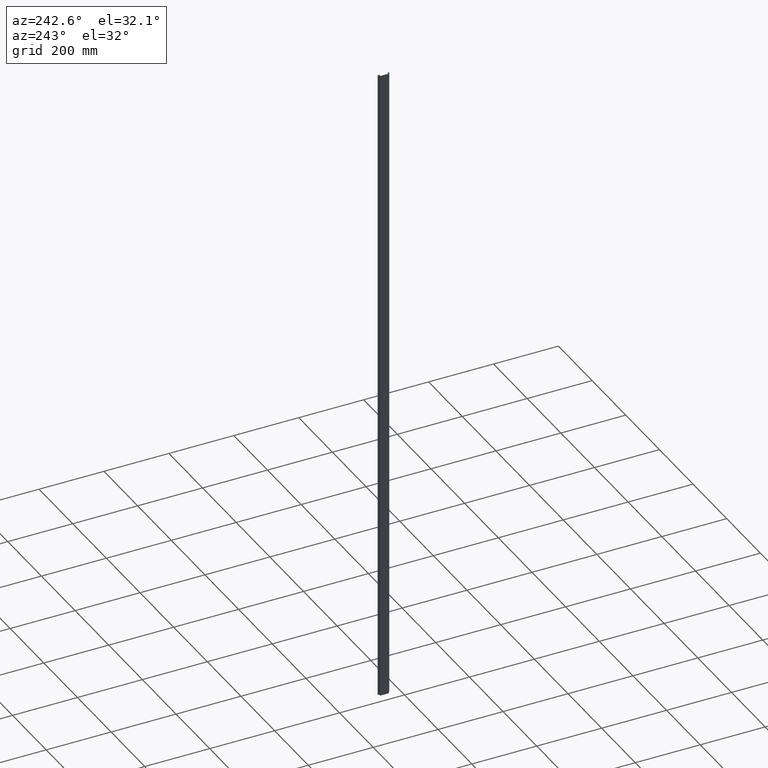
[diagram: clean part render]
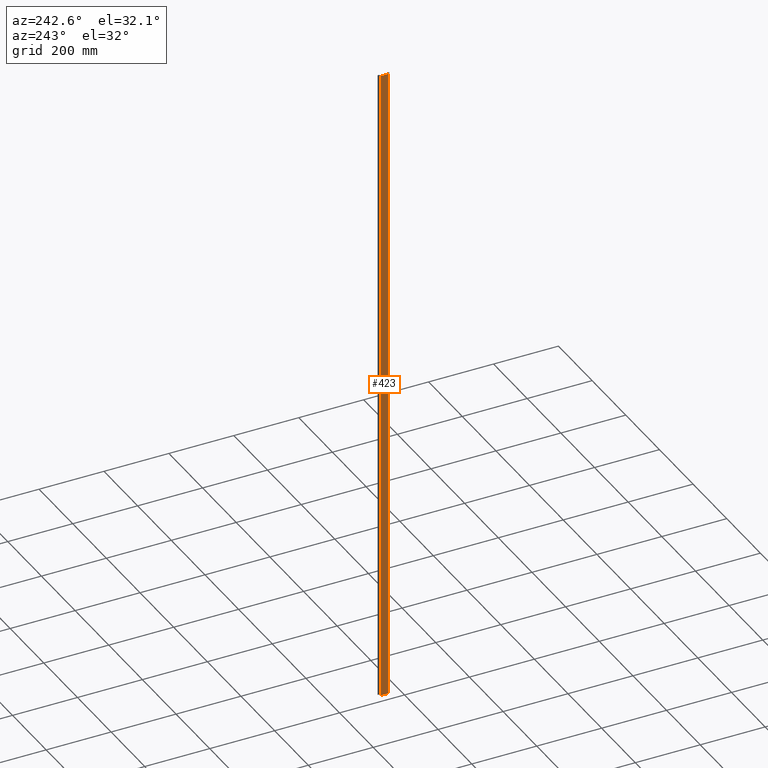
[diagram: same view with one face highlighted and labeled with its STEP entity id]
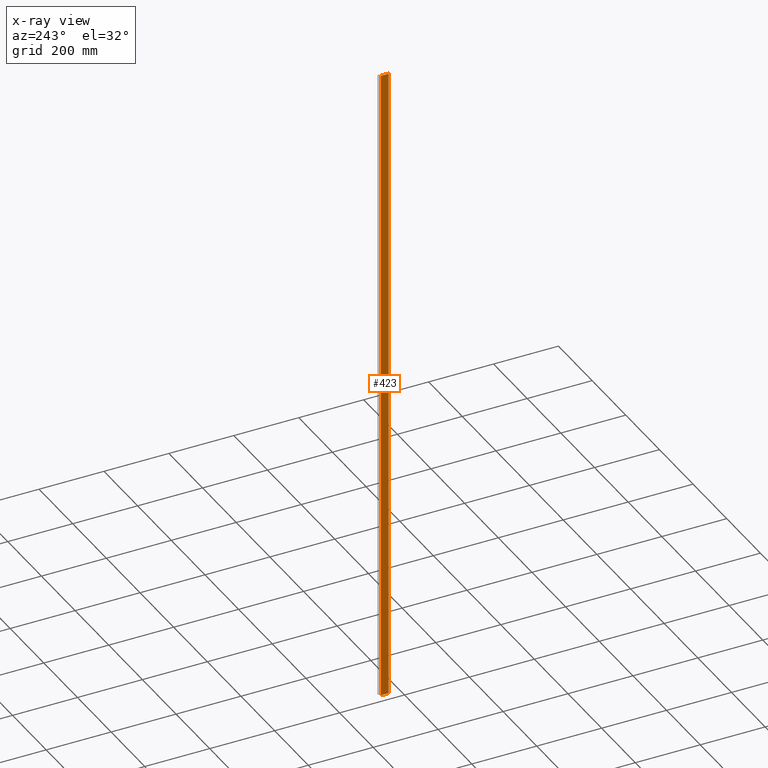
[diagram: x-ray of the same camera — body ghosted, the highlighted face saturated]
A machine part, auxiliary view. The second image highlights one B-rep face of the part: STEP entity #423.
The next image is the same camera in x-ray: the body ghosted, the highlighted face saturated — about 0% of this face is hidden behind the body in this view.
In plain terms, the highlighted planar face has unit normal (1, 0, -0).
Its self-contained STEP definition (entity closure, byte-faithful):
#7 = PLANE ( 'NONE',  #363 ) ;
#9 = DIRECTION ( 'NONE',  ( -0.0000000000000000000, 0.0000000000000000000, -1.000000000000000000 ) ) ;
#66 = LINE ( 'NONE', #80, #293 ) ;
#80 = CARTESIAN_POINT ( 'NONE',  ( 1384.825919215657900, 441.1357542965276400, 2000.000000000000000 ) ) ;
#86 = LINE ( 'NONE', #91, #292 ) ;
#87 = DIRECTION ( 'NONE',  ( 0.0000000000000000000, -1.000000000000000000, 0.0000000000000000000 ) ) ;
#91 = CARTESIAN_POINT ( 'NONE',  ( 1384.825919215657900, 441.1357542965276400, 0.0000000000000000000 ) ) ;
#141 = VERTEX_POINT ( 'NONE', #636 ) ;
#145 = VERTEX_POINT ( 'NONE', #612 ) ;
#148 = VERTEX_POINT ( 'NONE', #634 ) ;
#179 = VERTEX_POINT ( 'NONE', #647 ) ;
#190 = EDGE_LOOP ( 'NONE', ( #216, #233, #241, #236 ) ) ;
#216 = ORIENTED_EDGE ( 'NONE', *, *, #463, .F. ) ;
#233 = ORIENTED_EDGE ( 'NONE', *, *, #476, .T. ) ;
#236 = ORIENTED_EDGE ( 'NONE', *, *, #485, .T. ) ;
#241 = ORIENTED_EDGE ( 'NONE', *, *, #460, .T. ) ;
#273 = VECTOR ( 'NONE', #524, 1000.000000000000000 ) ;
#275 = VECTOR ( 'NONE', #535, 1000.000000000000000 ) ;
#292 = VECTOR ( 'NONE', #87, 1000.000000000000000 ) ;
#293 = VECTOR ( 'NONE', #503, 1000.000000000000000 ) ;
#363 = AXIS2_PLACEMENT_3D ( 'NONE', #746, #758, #9 ) ;
#423 = ADVANCED_FACE ( 'NONE', ( #760 ), #7, .F. ) ;
#460 = EDGE_CURVE ( 'NONE', #179, #145, #86, .T. ) ;
#463 = EDGE_CURVE ( 'NONE', #148, #141, #66, .T. ) ;
#476 = EDGE_CURVE ( 'NONE', #148, #179, #522, .T. ) ;
#485 = EDGE_CURVE ( 'NONE', #145, #141, #560, .T. ) ;
#499 = CARTESIAN_POINT ( 'NONE',  ( 1384.825919215657900, 480.9188036583253200, 2000.000000000000000 ) ) ;
#503 = DIRECTION ( 'NONE',  ( 0.0000000000000000000, -1.000000000000000000, 0.0000000000000000000 ) ) ;
#522 = LINE ( 'NONE', #499, #273 ) ;
#524 = DIRECTION ( 'NONE',  ( 0.0000000000000000000, 0.0000000000000000000, -1.000000000000000000 ) ) ;
#535 = DIRECTION ( 'NONE',  ( -0.0000000000000000000, -0.0000000000000000000, 1.000000000000000000 ) ) ;
#560 = LINE ( 'NONE', #572, #275 ) ;
#572 = CARTESIAN_POINT ( 'NONE',  ( 1384.825919215657900, 457.3188036583254100, 2000.000000000000000 ) ) ;
#612 = CARTESIAN_POINT ( 'NONE',  ( 1384.825919215657900, 457.3188036583254100, 0.0000000000000000000 ) ) ;
#634 = CARTESIAN_POINT ( 'NONE',  ( 1384.825919215657900, 480.9188036583253200, 2000.000000000000000 ) ) ;
#636 = CARTESIAN_POINT ( 'NONE',  ( 1384.825919215657900, 457.3188036583254100, 2000.000000000000000 ) ) ;
#647 = CARTESIAN_POINT ( 'NONE',  ( 1384.825919215657900, 480.9188036583253200, 0.0000000000000000000 ) ) ;
#746 = CARTESIAN_POINT ( 'NONE',  ( 1384.825919215657900, 441.1357542965276400, 2000.000000000000000 ) ) ;
#758 = DIRECTION ( 'NONE',  ( 1.000000000000000000, 0.0000000000000000000, -0.0000000000000000000 ) ) ;
#760 = FACE_OUTER_BOUND ( 'NONE', #190, .T. ) ;